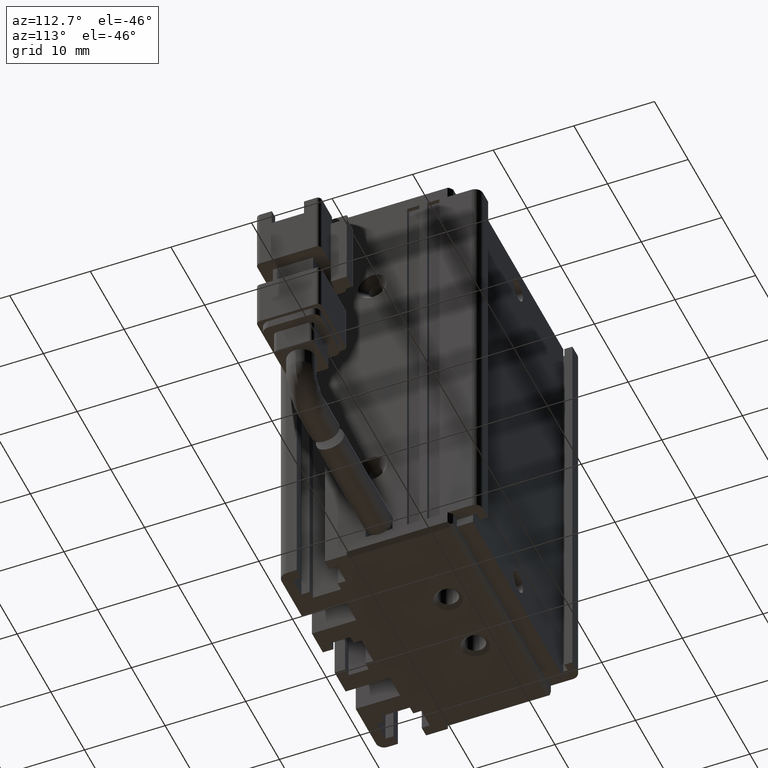
[diagram: clean part render]
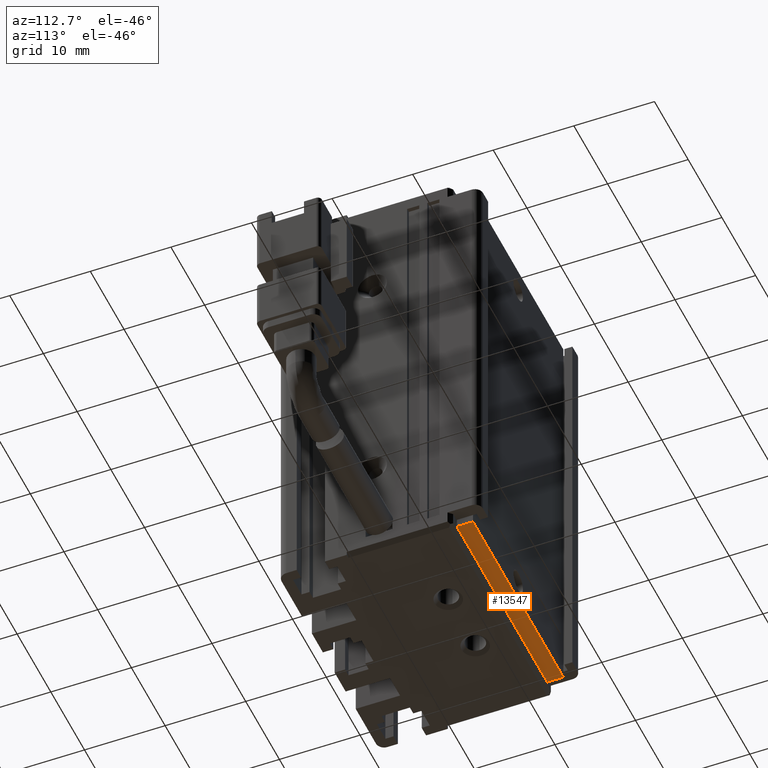
[diagram: same view with one face highlighted and labeled with its STEP entity id]
A machine part, auxiliary view. The second image highlights one B-rep face of the part: STEP entity #13547.
In plain terms, the highlighted planar face has unit normal (0, 0, 1).
Its self-contained STEP definition (entity closure, byte-faithful):
#680 = CARTESIAN_POINT ( 'NONE',  ( 54.32537974683541600, 34.19594479660386800, -142.0000000000000300 ) ) ;
#1404 = VECTOR ( 'NONE', #23009, 1000.000000000000000 ) ;
#2030 = CARTESIAN_POINT ( 'NONE',  ( 27.52537974683541200, 34.19594479660386800, -142.0000000000000300 ) ) ;
#3107 = CARTESIAN_POINT ( 'NONE',  ( 54.32537974683541600, 34.19594479660386800, -142.0000000000000300 ) ) ;
#3924 = CARTESIAN_POINT ( 'NONE',  ( 27.52537974683541200, 34.19594479660386800, -142.0000000000000300 ) ) ;
#3947 = VECTOR ( 'NONE', #13399, 1000.000000000000000 ) ;
#4027 = FACE_OUTER_BOUND ( 'NONE', #19796, .T. ) ;
#6813 = CARTESIAN_POINT ( 'NONE',  ( 27.52537974683541200, 34.19594479660386800, -142.0000000000000300 ) ) ;
#8772 = DIRECTION ( 'NONE',  ( 0.0000000000000000000, -1.000000000000000000, 0.0000000000000000000 ) ) ;
#9808 = LINE ( 'NONE', #11499, #3947 ) ;
#10108 = ORIENTED_EDGE ( 'NONE', *, *, #11802, .T. ) ;
#10829 = ORIENTED_EDGE ( 'NONE', *, *, #14851, .F. ) ;
#10956 = VERTEX_POINT ( 'NONE', #3924 ) ;
#11499 = CARTESIAN_POINT ( 'NONE',  ( 27.52537974683541200, 34.19594479660386800, -142.0000000000000300 ) ) ;
#11556 = EDGE_CURVE ( 'NONE', #18506, #21694, #11668, .T. ) ;
#11668 = LINE ( 'NONE', #680, #16143 ) ;
#11760 = CARTESIAN_POINT ( 'NONE',  ( 54.32537974683541600, 32.19594479660386100, -142.0000000000000300 ) ) ;
#11802 = EDGE_CURVE ( 'NONE', #20949, #10956, #9808, .T. ) ;
#11878 = EDGE_CURVE ( 'NONE', #18506, #20949, #21527, .T. ) ;
#12610 = CARTESIAN_POINT ( 'NONE',  ( 54.32537974683541600, 32.19594479660386100, -142.0000000000000300 ) ) ;
#13399 = DIRECTION ( 'NONE',  ( 0.0000000000000000000, 1.000000000000000000, 0.0000000000000000000 ) ) ;
#13547 = ADVANCED_FACE ( 'NONE', ( #4027 ), #23982, .F. ) ;
#13896 = DIRECTION ( 'NONE',  ( -1.000000000000000000, -0.0000000000000000000, 5.551115123125781500E-017 ) ) ;
#14423 = DIRECTION ( 'NONE',  ( -0.0000000000000000000, 1.000000000000000000, -0.0000000000000000000 ) ) ;
#14851 = EDGE_CURVE ( 'NONE', #21694, #10956, #16682, .T. ) ;
#16143 = VECTOR ( 'NONE', #14423, 1000.000000000000000 ) ;
#16682 = LINE ( 'NONE', #2030, #21202 ) ;
#18506 = VERTEX_POINT ( 'NONE', #12610 ) ;
#19796 = EDGE_LOOP ( 'NONE', ( #10108, #10829, #23932, #24447 ) ) ;
#20291 = DIRECTION ( 'NONE',  ( 5.551115123125781500E-017, 0.0000000000000000000, 1.000000000000000000 ) ) ;
#20949 = VERTEX_POINT ( 'NONE', #25038 ) ;
#21202 = VECTOR ( 'NONE', #13896, 1000.000000000000000 ) ;
#21435 = AXIS2_PLACEMENT_3D ( 'NONE', #6813, #20291, #8772 ) ;
#21527 = LINE ( 'NONE', #11760, #1404 ) ;
#21694 = VERTEX_POINT ( 'NONE', #3107 ) ;
#23009 = DIRECTION ( 'NONE',  ( -1.000000000000000000, -0.0000000000000000000, 5.551115123125781500E-017 ) ) ;
#23932 = ORIENTED_EDGE ( 'NONE', *, *, #11556, .F. ) ;
#23982 = PLANE ( 'NONE',  #21435 ) ;
#24447 = ORIENTED_EDGE ( 'NONE', *, *, #11878, .T. ) ;
#25038 = CARTESIAN_POINT ( 'NONE',  ( 27.52537974683541200, 32.19594479660386100, -142.0000000000000300 ) ) ;